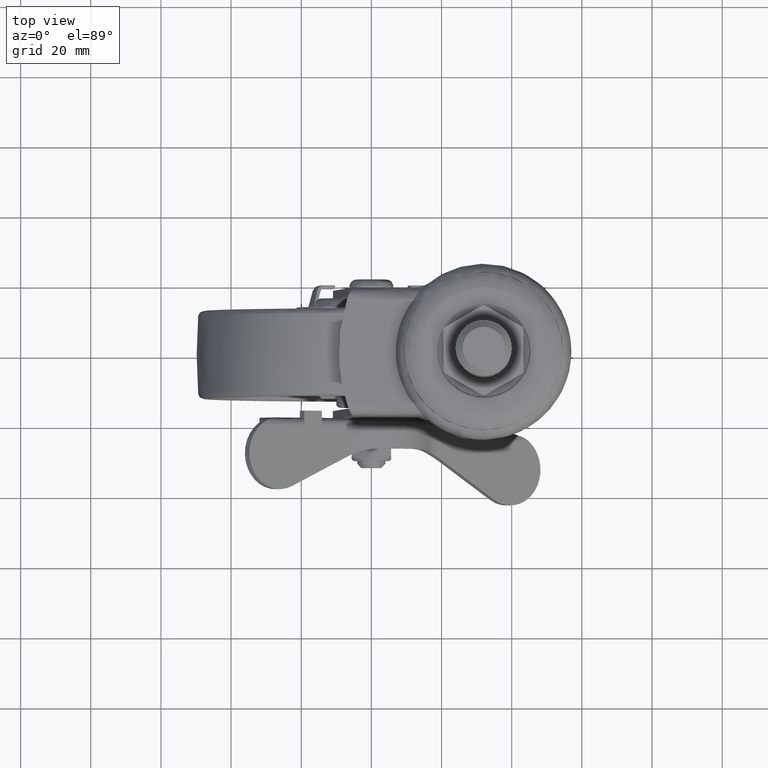
[diagram: clean part render]
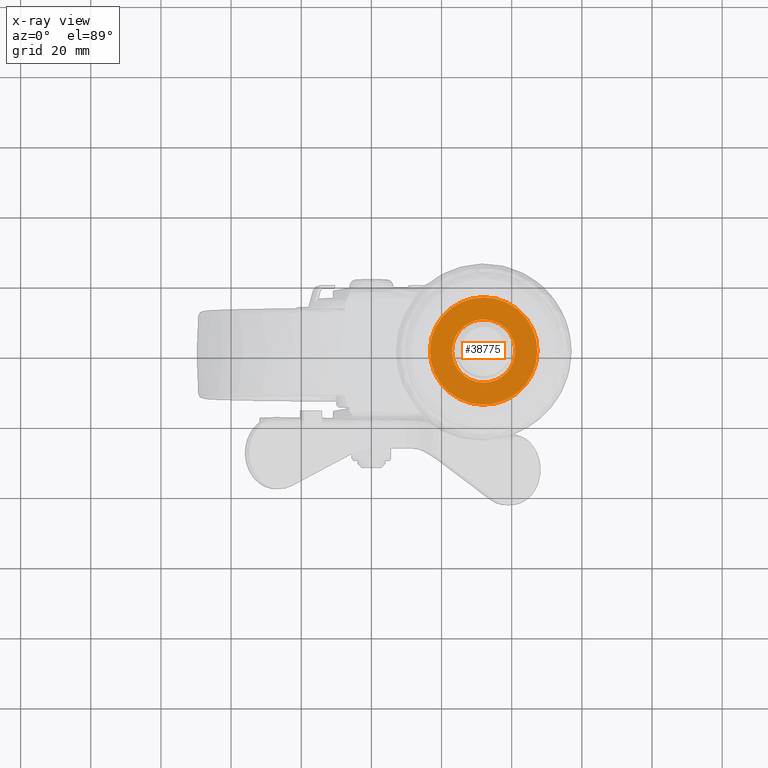
[diagram: x-ray — body ghosted, one internal face saturated and labeled with its STEP entity id]
A machine part, top view, then the same camera in x-ray: the body is ghosted and one INTERNAL B-rep face — a face not visible from any outside direction — is saturated and labeled: STEP entity #38775.
In plain terms, the highlighted face is a freeform B-spline surface patch.
Its self-contained STEP definition (entity closure, byte-faithful):
#35224=CARTESIAN_POINT('',(25.424248394199399,6.144874512523330,64.099995999999791));
#35225=VERTEX_POINT('',#35224);
#35231=CARTESIAN_POINT('',(23.0,-1.136868E-013,64.099995999999791));
#35232=VERTEX_POINT('',#35231);
#35233=CARTESIAN_POINT('',(23.0,-1.136868E-013,64.099995999999791));
#35234=CARTESIAN_POINT('',(22.999976539821049,0.493196187312368,64.099995999999805));
#35235=CARTESIAN_POINT('',(23.089963896855050,1.585279962103001,64.099995999999891));
#35236=CARTESIAN_POINT('',(23.561345789432210,3.328298157768972,64.099995999999479));
#35237=CARTESIAN_POINT('',(24.382704276641579,4.900235699877146,64.099996000000488));
#35238=CARTESIAN_POINT('',(25.111564745364269,5.810270521937469,64.099995999999109));
#35239=CARTESIAN_POINT('',(25.424248394199399,6.144874512523330,64.099995999999791));
#35240=B_SPLINE_CURVE_WITH_KNOTS('',3,(#35233,#35234,#35235,#35236,#35237,#35238,#35239),.UNSPECIFIED.,.F.,.U.,(4,1,1,1,4),(0.000000044653953,1.479598258320655,3.276286782816749,5.389979554285482,6.763887808871593),.UNSPECIFIED.);
#35241=EDGE_CURVE('',#35232,#35225,#35240,.T.);
#35243=CARTESIAN_POINT('',(31.999998208304230,-8.999999999999936,64.099995999999791));
#35244=VERTEX_POINT('',#35243);
#35245=CARTESIAN_POINT('',(31.999998208304230,-8.999999999999936,64.099995999999791));
#35246=CARTESIAN_POINT('',(31.337316965855688,-9.000134615730824,64.099995999999820));
#35247=CARTESIAN_POINT('',(30.196096827944800,-8.873340166298425,64.099995999999948));
#35248=CARTESIAN_POINT('',(28.679235112669168,-8.403001375698670,64.099995999999607));
#35249=CARTESIAN_POINT('',(27.186240321008679,-7.674500812222966,64.099996000000303));
#35250=CARTESIAN_POINT('',(25.710213180832110,-6.551497763735990,64.099995999999109));
#35251=CARTESIAN_POINT('',(24.511916495184369,-5.091132127053714,64.099996000000218));
#35252=CARTESIAN_POINT('',(23.613726169204192,-3.435458757816443,64.099996000000047));
#35253=CARTESIAN_POINT('',(23.107682253612719,-1.767176164323064,64.099996000000331));
#35254=CARTESIAN_POINT('',(22.999982022171888,-0.515410506816174,64.099995999998100));
#35255=CARTESIAN_POINT('',(23.0,-1.136868E-013,64.099995999999791));
#35256=B_SPLINE_CURVE_WITH_KNOTS('',3,(#35245,#35246,#35247,#35248,#35249,#35250,#35251,#35252,#35253,#35254,#35255),.UNSPECIFIED.,.F.,.U.,(4,1,1,1,1,1,1,1,4),(0.000000171001346,1.988021500375906,3.423865591248330,4.749239456107221,6.958228879697590,8.946224160650731,10.382044964865880,12.590999468574569,14.137254636048530),.UNSPECIFIED.);
#35257=EDGE_CURVE('',#35244,#35232,#35256,.T.);
#35259=CARTESIAN_POINT('',(41.0,-1.136868E-013,64.099995999999791));
#35260=VERTEX_POINT('',#35259);
#35261=CARTESIAN_POINT('',(41.0,-1.136868E-013,64.099995999999791));
#35262=CARTESIAN_POINT('',(41.000005864599743,-0.441770952695224,64.099995999999862));
#35263=CARTESIAN_POINT('',(40.924006589738703,-1.472612455215919,64.099995999999678));
#35264=CARTESIAN_POINT('',(40.510611164672383,-3.123338356700357,64.099995999999933));
#35265=CARTESIAN_POINT('',(39.763218373784717,-4.654557204665892,64.099995999999734));
#35266=CARTESIAN_POINT('',(38.751609457367181,-6.018486563971067,64.099995999999834));
#35267=CARTESIAN_POINT('',(37.733518558558593,-6.987781328153501,64.099995999999862));
#35268=CARTESIAN_POINT('',(36.486499570807347,-7.843320101631175,64.099995999999592));
#35269=CARTESIAN_POINT('',(35.153536558262182,-8.483851999014961,64.099995999999678));
#35270=CARTESIAN_POINT('',(33.583052224230542,-8.908054789585334,64.099996000000516));
#35271=CARTESIAN_POINT('',(32.515415137174152,-9.000038987440213,64.099995999998512));
#35272=CARTESIAN_POINT('',(31.999998208304230,-8.999999999999936,64.099995999999791));
#35273=B_SPLINE_CURVE_WITH_KNOTS('',3,(#35261,#35262,#35263,#35264,#35265,#35266,#35267,#35268,#35269,#35270,#35271,#35272),.UNSPECIFIED.,.F.,.U.,(4,1,1,1,1,1,1,1,1,4),(0.000000170390191,1.325329228181531,3.092518467475127,5.080585784361091,6.405992886253934,8.173079723414052,9.277561229122956,10.934290730502640,12.591001266397090,14.137256655719851),.UNSPECIFIED.);
#35274=EDGE_CURVE('',#35260,#35244,#35273,.T.);
#35276=CARTESIAN_POINT('',(38.144875119239813,6.575752262144325,64.099995999999791));
#35277=VERTEX_POINT('',#35276);
#35278=CARTESIAN_POINT('',(38.144875119239813,6.575752262144325,64.099995999999791));
#35279=CARTESIAN_POINT('',(38.678132770107830,6.077694518778876,64.099995999999933));
#35280=CARTESIAN_POINT('',(39.547733504471580,5.039825821357245,64.099995999999592));
#35281=CARTESIAN_POINT('',(40.428223326356203,3.322098047946694,64.099995999999962));
#35282=CARTESIAN_POINT('',(40.899914671004829,1.651307398668460,64.099995999999337));
#35283=CARTESIAN_POINT('',(41.000051270795652,0.537641212856452,64.099996000000232));
#35284=CARTESIAN_POINT('',(41.0,-1.136868E-013,64.099995999999791));
#35285=B_SPLINE_CURVE_WITH_KNOTS('',3,(#35278,#35279,#35280,#35281,#35282,#35283,#35284),.UNSPECIFIED.,.F.,.U.,(4,1,1,1,4),(0.000000052192946,2.188974790006404,4.032294706168085,5.760444981086564,7.373368351396885),.UNSPECIFIED.);
#35286=EDGE_CURVE('',#35277,#35260,#35285,.T.);
#35322=CARTESIAN_POINT('',(32.000001791695617,8.999999999999707,64.099995999999791));
#35323=VERTEX_POINT('',#35322);
#35324=CARTESIAN_POINT('',(32.000001791695617,8.999999999999707,64.099995999999791));
#35325=CARTESIAN_POINT('',(32.951229330136933,9.000519607116949,64.099995999999464));
#35326=CARTESIAN_POINT('',(34.571426684917562,8.740638546906167,64.099996000000729));
#35327=CARTESIAN_POINT('',(36.634806330337497,7.797566299719832,64.099995999998455));
#35328=CARTESIAN_POINT('',(37.681631303103678,7.008774423834665,64.099996000001070));
#35329=CARTESIAN_POINT('',(38.144875119239813,6.575752262144325,64.099995999999791));
#35330=B_SPLINE_CURVE_WITH_KNOTS('',3,(#35324,#35325,#35326,#35327,#35328,#35329),.UNSPECIFIED.,.F.,.U.,(4,1,1,4),(0.000000044660394,2.853533494600324,4.861541090532261,6.763886348170347),.UNSPECIFIED.);
#35331=EDGE_CURVE('',#35323,#35277,#35330,.T.);
#35333=CARTESIAN_POINT('',(25.424248394199399,6.144874512523330,64.099995999999791));
#35334=CARTESIAN_POINT('',(25.922306338645541,6.678130717704889,64.099995999999919));
#35335=CARTESIAN_POINT('',(26.960173820231660,7.547736963977649,64.099995999999550));
#35336=CARTESIAN_POINT('',(28.677904762849462,8.428216530391611,64.099996000000274));
#35337=CARTESIAN_POINT('',(30.348690891179089,8.899927120202246,64.099995999999436));
#35338=CARTESIAN_POINT('',(31.462362481688519,9.000042168647127,64.099995999999990));
#35339=CARTESIAN_POINT('',(32.000001791695617,8.999999999999707,64.099995999999791));
#35340=B_SPLINE_CURVE_WITH_KNOTS('',3,(#35333,#35334,#35335,#35336,#35337,#35338,#35339),.UNSPECIFIED.,.F.,.U.,(4,1,1,1,4),(0.000000052210265,2.188975211783953,4.032295483102395,5.760446091055531,7.373369772165423),.UNSPECIFIED.);
#35341=EDGE_CURVE('',#35225,#35323,#35340,.T.);
#36990=CARTESIAN_POINT('',(19.523635629220340,-8.908688191110702,64.099995999553869));
#36991=VERTEX_POINT('',#36990);
#37005=CARTESIAN_POINT('',(16.669494685734900,-1.136868E-013,64.099995999999791));
#37006=VERTEX_POINT('',#37005);
#37007=CARTESIAN_POINT('',(19.523635629220340,-8.908688191110702,64.099995999553869));
#37008=CARTESIAN_POINT('',(18.746408988962560,-7.820939151859988,64.099995999675428));
#37009=CARTESIAN_POINT('',(17.831748262173200,-6.101680122794780,64.099995999818034));
#37010=CARTESIAN_POINT('',(16.892599087617540,-3.069607359513208,64.099995999965060));
#37011=CARTESIAN_POINT('',(16.669217943935490,-1.237831014191325,64.099995999999891));
#37012=CARTESIAN_POINT('',(16.669494685734900,-1.136868E-013,64.099995999999791));
#37013=B_SPLINE_CURVE_WITH_KNOTS('',3,(#37007,#37008,#37009,#37010,#37011,#37012),.UNSPECIFIED.,.F.,.U.,(4,1,1,4),(0.000000022247065,4.010502405387686,5.792919726650485,9.506333497822126),.UNSPECIFIED.);
#37014=EDGE_CURVE('',#36991,#37006,#37013,.T.);
#37016=CARTESIAN_POINT('',(32.0,15.330505314347230,64.099995999862372));
#37017=VERTEX_POINT('',#37016);
#37018=CARTESIAN_POINT('',(16.669494685734900,-1.136868E-013,64.099995999999791));
#37019=CARTESIAN_POINT('',(16.669248674905880,1.191529012184991,64.099995999999919));
#37020=CARTESIAN_POINT('',(16.941375909836189,3.511732583151898,64.099995999997347));
#37021=CARTESIAN_POINT('',(17.982791719207079,6.422686259970202,64.099995999988096));
#37022=CARTESIAN_POINT('',(19.186271909360741,8.487042562857509,64.099995999977210));
#37023=CARTESIAN_POINT('',(20.402833066638301,10.085981024458199,64.099995999966268));
#37024=CARTESIAN_POINT('',(22.159191393781182,11.886523637759311,64.099995999950877));
#37025=CARTESIAN_POINT('',(24.555839160124599,13.530736770849700,64.099995999928566));
#37026=CARTESIAN_POINT('',(27.056536029149321,14.566248051527650,64.099995999906767));
#37027=CARTESIAN_POINT('',(29.428899727312430,15.176019694039420,64.099995999885394));
#37028=CARTESIAN_POINT('',(30.996622261284770,15.330628457483380,64.099995999871396));
#37029=CARTESIAN_POINT('',(32.0,15.330505314347230,64.099995999862372));
#37030=B_SPLINE_CURVE_WITH_KNOTS('',3,(#37018,#37019,#37020,#37021,#37022,#37023,#37024,#37025,#37026,#37027,#37028,#37029),.UNSPECIFIED.,.F.,.U.,(4,1,1,1,1,1,1,1,1,4),(0.000000066785780,3.574544868810236,6.960998042669967,9.218629462580093,10.723735916354190,12.981246156946730,16.743983317264050,19.377895512829419,21.071128707465729,24.081252534338709),.UNSPECIFIED.);
#37031=EDGE_CURVE('',#37006,#37017,#37030,.T.);
#37146=CARTESIAN_POINT('',(47.330505314265103,-1.136868E-013,64.099995999999791));
#37147=VERTEX_POINT('',#37146);
#37148=CARTESIAN_POINT('',(32.0,15.330505314347230,64.099995999862372));
#37149=CARTESIAN_POINT('',(32.815234027681527,15.330546077841589,64.099995999869606));
#37150=CARTESIAN_POINT('',(34.571148739029283,15.190165256115121,64.099995999885451));
#37151=CARTESIAN_POINT('',(36.827949618245512,14.610155468072840,64.099995999906056));
#37152=CARTESIAN_POINT('',(38.911521182248137,13.731979646026200,64.099995999923848));
#37153=CARTESIAN_POINT('',(41.030451215064112,12.497315953094860,64.099995999943687));
#37154=CARTESIAN_POINT('',(42.989173377163603,10.807623017808879,64.099995999960797));
#37155=CARTESIAN_POINT('',(44.730435400059207,8.658995636006925,64.099995999976599));
#37156=CARTESIAN_POINT('',(45.985578067641079,6.474851245212082,64.099995999986973));
#37157=CARTESIAN_POINT('',(47.045827379638389,3.511640944457940,64.099995999997788));
#37158=CARTESIAN_POINT('',(47.330906930095473,1.316976907423195,64.099995999999649));
#37159=CARTESIAN_POINT('',(47.330505314265103,-1.136868E-013,64.099995999999791));
#37160=B_SPLINE_CURVE_WITH_KNOTS('',3,(#37148,#37149,#37150,#37151,#37152,#37153,#37154,#37155,#37156,#37157,#37158,#37159),.UNSPECIFIED.,.F.,.U.,(4,1,1,1,1,1,1,1,1,4),(0.000000066788996,2.445720423620479,5.267767426296302,6.960998042671559,9.218629462581243,12.604988408230520,14.674490703378069,17.496529475975709,20.130434082880601,24.081252534338709),.UNSPECIFIED.);
#37161=EDGE_CURVE('',#37017,#37147,#37160,.T.);
#37163=CARTESIAN_POINT('',(47.330505314265103,-1.136868E-013,64.099995999999791));
#37164=CARTESIAN_POINT('',(47.330532886811874,-0.754993628570722,64.099996000011529));
#37165=CARTESIAN_POINT('',(47.207594518354419,-2.415986526806489,64.099996000034778));
#37166=CARTESIAN_POINT('',(46.556857685769202,-5.117955137347983,64.099996000063072));
#37167=CARTESIAN_POINT('',(45.217509937973681,-8.012817274086714,64.099996000079841));
#37168=CARTESIAN_POINT('',(43.273315951405493,-10.543682918459959,64.099996000078477));
#37169=CARTESIAN_POINT('',(41.248958018927510,-12.297159117027920,64.099996000062973));
#37170=CARTESIAN_POINT('',(39.333984944608353,-13.514137449454349,64.099996000042466));
#37171=CARTESIAN_POINT('',(37.455829891561237,-14.382721245389259,64.099996000013732));
#37172=CARTESIAN_POINT('',(35.280494991498401,-15.032693839461491,64.099995999981076));
#37173=CARTESIAN_POINT('',(33.231444467573560,-15.326870652343080,64.099995999941413));
#37174=CARTESIAN_POINT('',(31.064031332662289,-15.347754535257600,64.099995999896407));
#37175=CARTESIAN_POINT('',(28.909464702450659,-15.080700500132981,64.099995999847138));
#37176=CARTESIAN_POINT('',(26.629485175033690,-14.422729859489831,64.099995999788717));
#37177=CARTESIAN_POINT('',(24.247770835940869,-13.320196262928190,64.099995999722424));
#37178=CARTESIAN_POINT('',(21.760784175805728,-11.578584084468201,64.099995999640058));
#37179=CARTESIAN_POINT('',(20.225379247540008,-9.891960646671485,64.099995999588174));
#37180=CARTESIAN_POINT('',(19.523635629220340,-8.908688191110702,64.099995999553869));
#37181=B_SPLINE_CURVE_WITH_KNOTS('',3,(#37163,#37164,#37165,#37166,#37167,#37168,#37169,#37170,#37171,#37172,#37173,#37174,#37175,#37176,#37177,#37178,#37179,#37180),.UNSPECIFIED.,.F.,.U.,(4,1,1,1,1,1,1,1,1,1,1,1,1,1,1,4),(0.000000260353666,2.264994993644827,4.983005118137776,8.305009225802447,11.778047106613950,14.496080230201059,16.308101824386600,18.573050208160641,20.687024615647360,23.103029402715389,24.764039749537890,27.180024389981678,29.596052216402601,31.861060310230549,35.032124650593524,38.656062808510860),.UNSPECIFIED.);
#37182=EDGE_CURVE('',#37147,#36991,#37181,.T.);
#38756=CARTESIAN_POINT('',(15.137976976443170,-16.856538845972750,64.099995999999791));
#38757=CARTESIAN_POINT('',(48.862023571818433,-16.856538845972761,64.099995999999791));
#38758=CARTESIAN_POINT('',(15.137976976443170,16.861762668676789,64.099995999999791));
#38759=CARTESIAN_POINT('',(48.862023571818433,16.861762668676789,64.099995999999791));
#38760=B_SPLINE_SURFACE_WITH_KNOTS('',1,1,((#38756,#38758),(#38757,#38759)),.UNSPECIFIED.,.F.,.F.,.U.,(2,2),(2,2),(0.0,33.724046595375263),(0.0,33.718301514649553),.UNSPECIFIED.);
#38761=ORIENTED_EDGE('',*,*,#37014,.F.);
#38762=ORIENTED_EDGE('',*,*,#37182,.F.);
#38763=ORIENTED_EDGE('',*,*,#37161,.F.);
#38764=ORIENTED_EDGE('',*,*,#37031,.F.);
#38765=EDGE_LOOP('',(#38761,#38762,#38763,#38764));
#38766=FACE_OUTER_BOUND('',#38765,.T.);
#38767=ORIENTED_EDGE('',*,*,#35274,.T.);
#38768=ORIENTED_EDGE('',*,*,#35257,.T.);
#38769=ORIENTED_EDGE('',*,*,#35241,.T.);
#38770=ORIENTED_EDGE('',*,*,#35341,.T.);
#38771=ORIENTED_EDGE('',*,*,#35331,.T.);
#38772=ORIENTED_EDGE('',*,*,#35286,.T.);
#38773=EDGE_LOOP('',(#38767,#38768,#38769,#38770,#38771,#38772));
#38774=FACE_BOUND('',#38773,.T.);
#38775=ADVANCED_FACE('',(#38766,#38774),#38760,.T.);